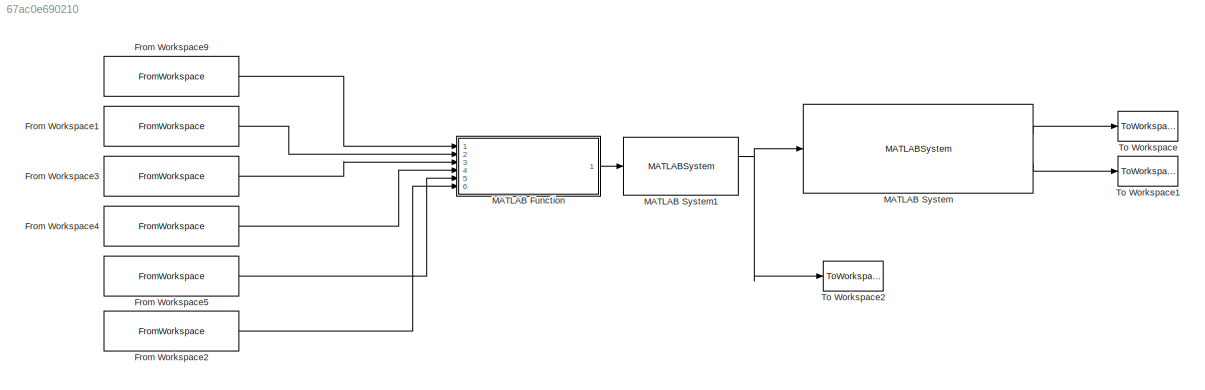
MODEL slx_67ac0e690210
KIND model
CONFIG AbsTol = auto
CONFIG EnableMultiTasking = off
CONFIG FixedStep = 0.01
CONFIG MaxStep = auto
CONFIG MinStep = auto
CONFIG RelTol = 1e-3
CONFIG SampleTimeConstraint = Unconstrained
CONFIG Solver = FixedStepDiscrete
CONFIG SolverName = FixedStepDiscrete
CONFIG StartTime = 0.0
CONFIG StopTime = 45
BLOCK [FromWorkspace] From Workspace1
  OutDataTypeStr = double
  SampleTime = 0
  VariableName = gpsdata.Latitude
  ZeroCross = on
BLOCK [FromWorkspace] From Workspace2
  OutDataTypeStr = double
  SampleTime = 0
  VariableName = gpsdata.Velocity
  ZeroCross = on
BLOCK [FromWorkspace] From Workspace3
  OutDataTypeStr = double
  SampleTime = 0
  VariableName = gpsdata.Altitude
  ZeroCross = on
BLOCK [FromWorkspace] From Workspace4
  OutDataTypeStr = double
  SampleTime = 0
  VariableName = gpsdata.Heading
  ZeroCross = on
BLOCK [FromWorkspace] From Workspace5
  OutDataTypeStr = double
  SampleTime = 0
  VariableName = gpsdata.RotationRate
  ZeroCross = on
BLOCK [FromWorkspace] From Workspace9
  OutDataTypeStr = double
  SampleTime = 0
  VariableName = gpsdata.Longitude
  ZeroCross = on
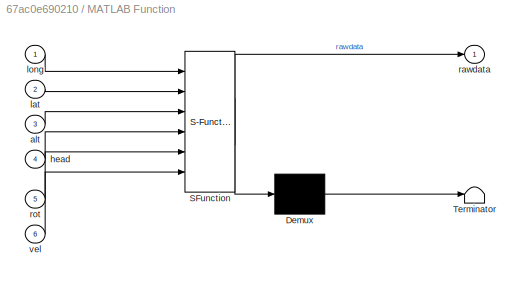
BLOCK [SubSystem] MATLAB Function
  ErrorFcn = Stateflow.Translate.translate
  PermitHierarchicalResolution = ExplicitOnly
  Ports = [6, 1]
  RequestExecContextInheritance = off
  SFBlockType = MATLAB Function
  TreatAsAtomicUnit = on
  Variant = off
BLOCK [Demux] MATLAB Function/ Demux 
  Outputs = 1
  Ports = [1, 1]
BLOCK [S-Function] MATLAB Function/ SFunction 
  EnableBusSupport = on
  FunctionName = sf_sfun
  PortCounts = [6 2]
  Ports = [6, 2]
  SFcnIsStateOwnerBlock = off
  SFunctionDeploymentMode = off
  Tag = Stateflow S-Function replay 2
BLOCK [Terminator] MATLAB Function/ Terminator 
BLOCK [Inport] MATLAB Function/alt
  IconDisplay = Port number
  Port = 3
BLOCK [Inport] MATLAB Function/head
  IconDisplay = Port number
  Port = 4
BLOCK [Inport] MATLAB Function/lat
  IconDisplay = Port number
  Port = 2
BLOCK [Inport] MATLAB Function/long
  IconDisplay = Port number
BLOCK [Outport] MATLAB Function/rawdata
  IconDisplay = Port number
BLOCK [Inport] MATLAB Function/rot
  IconDisplay = Port number
  Port = 5
BLOCK [Inport] MATLAB Function/vel
  IconDisplay = Port number
  Port = 6
BLOCK [MATLABSystem] MATLAB System
  Caf = 140000
  Car = 120000
  H_u = 2
  H_x = diag( [ 1, 0, 0.5, 0 ] )
  Iz = 3270
  M = 1800
  MaskDisplay = disp('lk_pcis_controller');\nport_label('input',1,'lk_acc_state');\nport_label('output',1,'delta_f');\nport_label('output',2,'control_info');
  MaskType = lk_pcis_controller
  Ports = [1, 2]
  SimulateUsing = Code generation
  System = lk_pcis_controller
  f_u = 0
  f_x = zeros( 4, 1 )
  lf = 1.2
  lr = 1.65
  sol_opts = struct( 'DataType', 'double', 'MaxIter', 200, 'FeasibilityTol', 1e-6, 'IntegrityChecks', true )
BLOCK [MATLABSystem] MATLAB System1
  MaskDisplay = disp('road');\nport_label('input',1,'data');\nport_label('output',1,'lk_acc_state');\nport_label('output',2,'road_left');
  MaskType = road
  N_interp = 10
  N_path = 3
  Ports = [1, 2]
  SimulateUsing = Code generation
  System = road
  circular = 0
  dt = 0.1
  h0 = 0
  lat0 = 42.30095833
  long0 = -83.69758056
  pathfile = data/run-highway.mat.ascii
BLOCK [ToWorkspace] To Workspace
  FixptAsFi = on
  MaxDataPoints = inf
  Ports = [1]
  SampleTime = -1
  Save2DSignal = 3-D array (concatenate along third dimension)
  SaveFormat = Timeseries
  VariableName = delta_f
BLOCK [ToWorkspace] To Workspace1
  FixptAsFi = on
  MaxDataPoints = inf
  Ports = [1]
  SampleTime = -1
  Save2DSignal = 3-D array (concatenate along third dimension)
  SaveFormat = Timeseries
  VariableName = lk_cinfo
BLOCK [ToWorkspace] To Workspace2
  FixptAsFi = on
  MaxDataPoints = inf
  Ports = [1]
  SampleTime = -1
  Save2DSignal = 3-D array (concatenate along third dimension)
  SaveFormat = Timeseries
  VariableName = lk_acc_state
LINE From Workspace1:1 -> MATLAB Function:2
LINE From Workspace2:1 -> MATLAB Function:6
LINE From Workspace3:1 -> MATLAB Function:3
LINE From Workspace4:1 -> MATLAB Function:4
LINE From Workspace5:1 -> MATLAB Function:5
LINE From Workspace9:1 -> MATLAB Function:1
LINE MATLAB Function:1 -> MATLAB System1:1
NET MATLAB System1:1 -> MATLAB System:1, To Workspace2:1
LINE MATLAB System:1 -> To Workspace:1
LINE MATLAB System:2 -> To Workspace1:1
note: NET lines group one-source signal fan-out (src -> all destinations, sorted); 1:1 wires keep LINE
CHART MATLAB Function states=1 transitions=1
  STATE_LABEL 'eML_blk_kernel()'
  STATE_LABEL 'SCRIPT:\nfunction rawdata = fcn(long, lat, alt, head, rot, vel)\n\n    rawdata = struct();\n\n    normDeg = @(x) pi-mod(pi-x, 2*pi);\n\n    % vector GPS -> CG\n    r_gps_cg = [.99; 0];                     \n\n    % rotational speed\n    omega = rot(3);\n\n    % velocity at GPS\n    v_gps = [vel(1);\n             vel(2)];     \n    \n    % velocity at CG\n    v_cg = v_gps + (r_gps_cg) * omega;\n\n    rawdata.latitude ...<+1280ch>'
